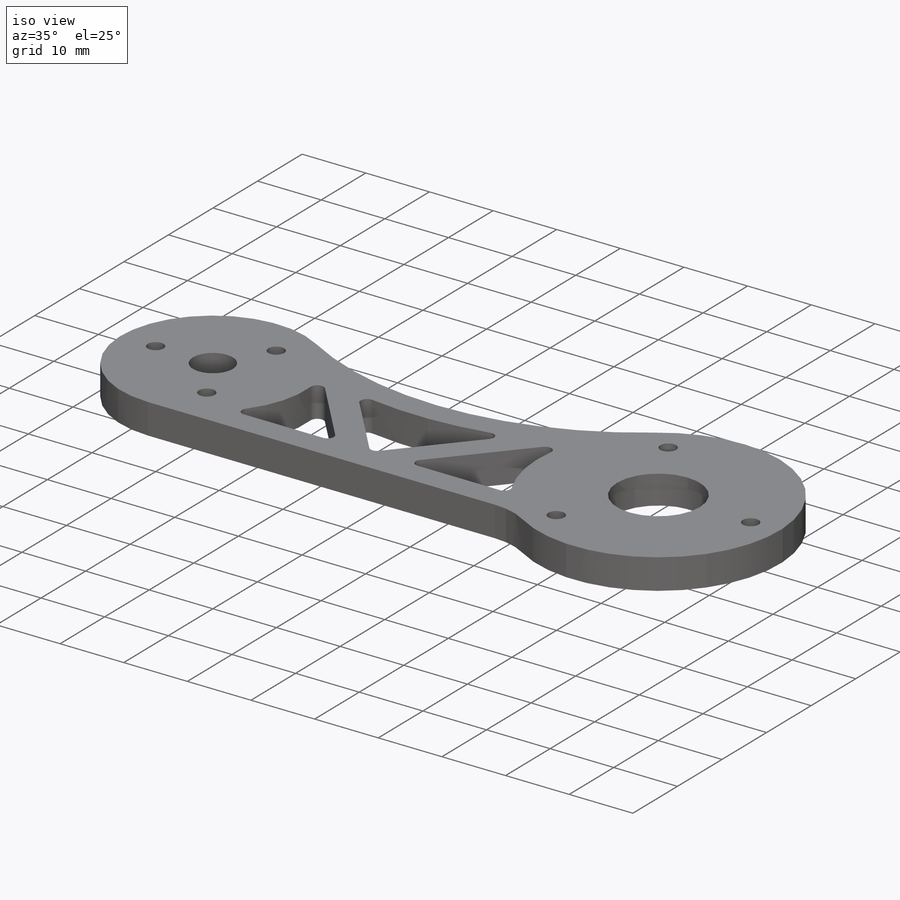
[diagram: iso view]
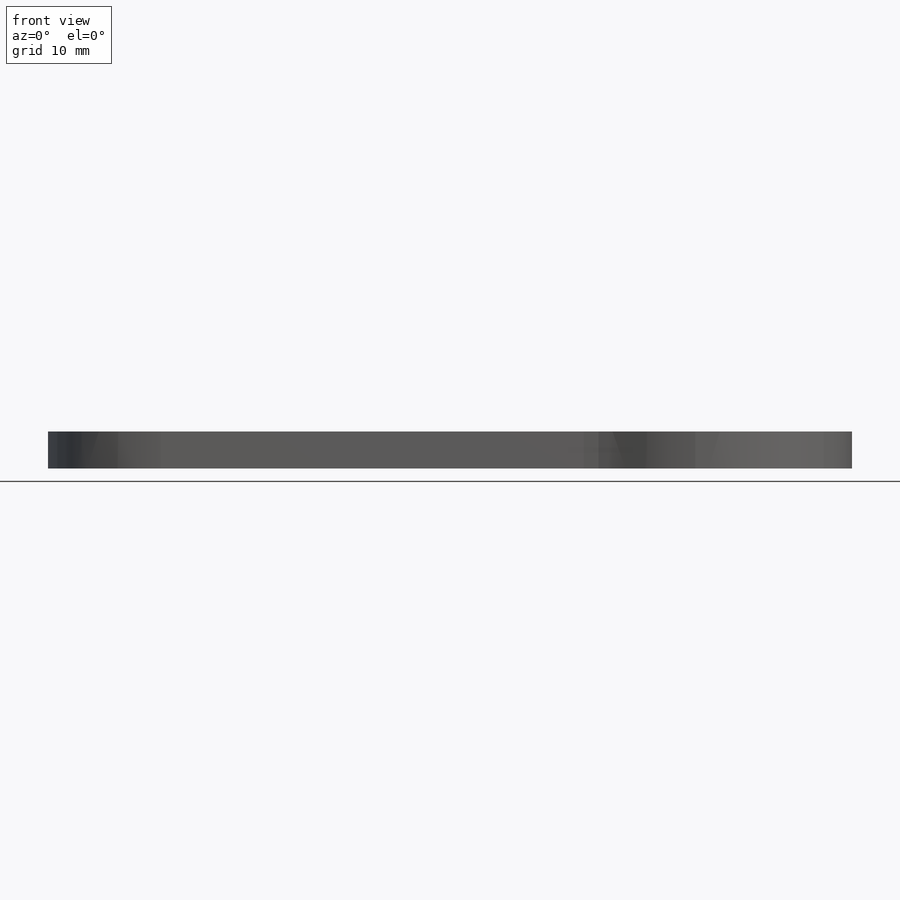
[diagram: front view]
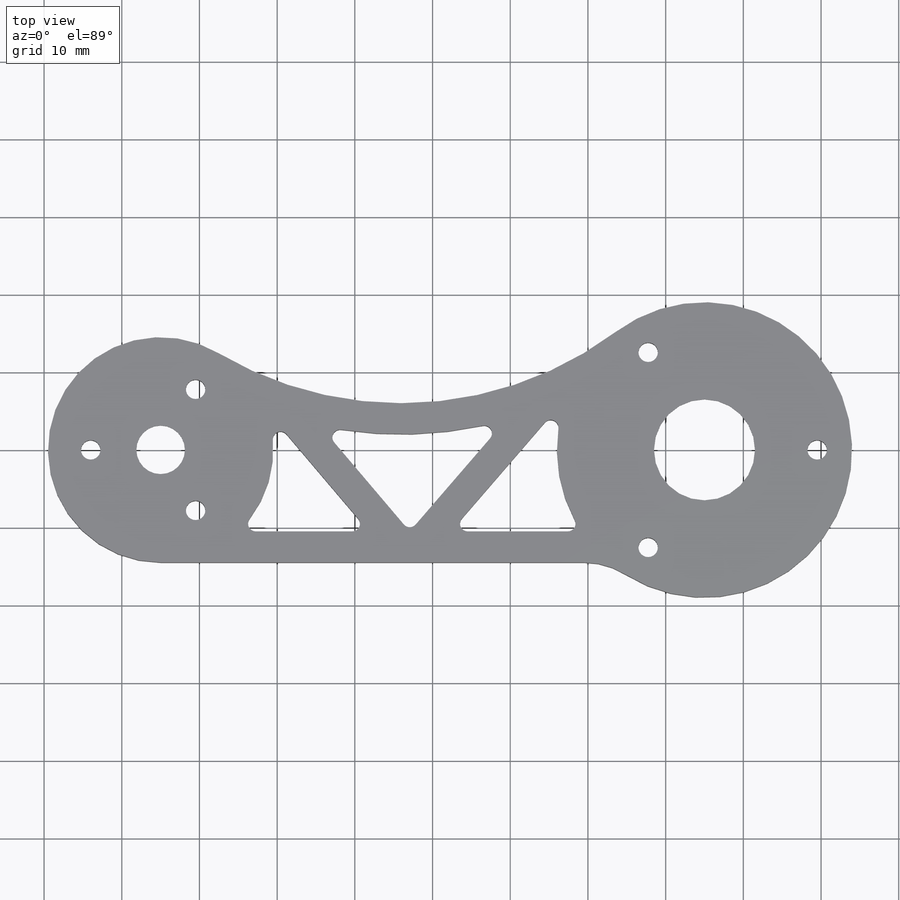
[diagram: top view]
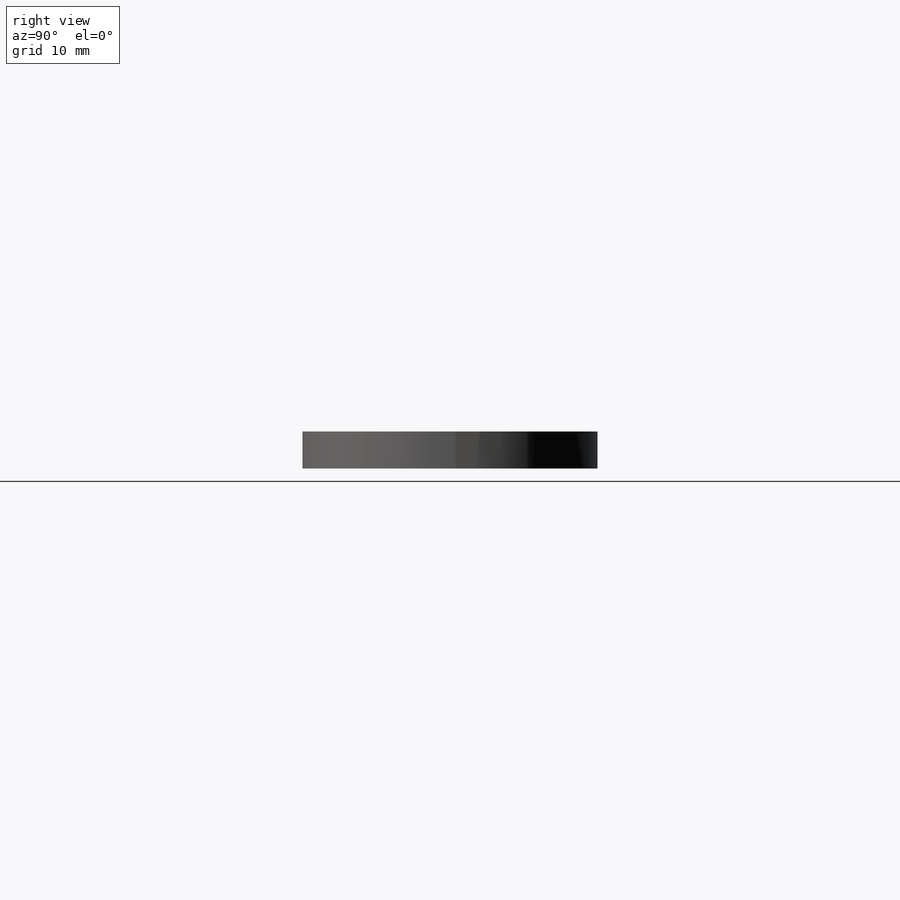
[diagram: right view]
SOLIDWORKS PART (.sldprt)
format: sldprt  version: not decoded by parser v0  size: 1,003,008 bytes
history: native  units: mm
features: sketch x16, cut_extrude x10, thread x9, extrude x2, hole x2, material x1, fillet x1, mirror x1 (+16 scaffold rows collapsed)
feature tree (58):
  scaffold x16  (default folders/planes/origin — collapsed)
  material  "Stainless Steel (ferritic)"
  sketch  "Sketch1"  dims[D1=29.0mm D2=38.0mm D4=20.0mm D3=70.0mm]
  extrude  "Boss-Extrude1"  Depth=4.7625mm
  sketch  "Sketch2"  dims[D1=6.0mm D2=4.0mm]
  cut_extrude  "Cut-Extrude1"  [1 undecoded]
  sketch  "Sketch3"  dims[D2=4.0mm D3=4.0mm D4=1.0mm D1=4.0mm]
  cut_extrude  "Cut-Extrude2"  [1 undecoded]
  fillet  "Fillet1"  Radius=1mm
  mirror  "Mirror1"
  sketch  "Sketch4"  dims[D1=8.0mm]
  extrude  "Boss-Extrude3"  [1 undecoded]
  sketch  "Sketch5"  dims[D1=6.25mm]
  cut_extrude  "Cut-Extrude3"  [1 undecoded]
  sketch  "Sketch6"  dims[D1=7.0mm]
  cut_extrude  "Cut-Extrude4"  Depth=1.5mm
  sketch  "Sketch7"  dims[D1=13.0mm]
  cut_extrude  "Cut-Extrude5"  [1 undecoded]
  sketch  "Sketch8"  dims[D1=14.0mm]
  cut_extrude  "Cut-Extrude6"  Depth=1.5mm
  sketch  "Sketch9"  dims[D1=10.0mm]
  cut_extrude  "Cut-Extrude7"  [1 undecoded]
  sketch  "Sketch10"  dims[D1=2.5mm]
  cut_extrude  "Cut-Extrude8"  Depth=2mm
  sketch  "Sketch11"  dims[D1=7.0mm]
  cut_extrude  "Cut-Extrude9"  Depth=1.5mm
  sketch  "Sketch12"  dims[D1=0.5mm]
  cut_extrude  "Cut-Extrude10"  [1 undecoded]
  hole  "M3x0.5 Tapped Hole1"  Diameter=2.5mm Depth=4.7625mm
  sketch  "Sketch14"  dims[c1.D1=18.0mm c1.D2=29.0mm c1.D3=~14.491455mm c2.D3=120.0deg c2.D4=~12.148622mm c3.D4=120.0deg c3.D5=9.0mm c4.D5=120.0deg c4.D6=9.0mm c5.D6=120.0deg]
  sketch  "Sketch13"  dims[hole-wizard template sketch: 60 standard entries collapsed; hole parameters kept: c18.Thru Tap Drill Depth=4.7625mm]
  thread  "Hole Thread1"  Diameter=3mm  [1 undecoded]
  thread  "Hole Thread2"  Diameter=3mm  [1 undecoded]
  thread  "Hole Thread3"  Diameter=3mm  [1 undecoded]
  thread  "Hole Thread4"  Diameter=3mm  [1 undecoded]
  thread  "Hole Thread5"  Diameter=3mm  [1 undecoded]
  thread  "Hole Thread6"  Diameter=3mm  [1 undecoded]
  hole  "M3x0.5 Tapped Hole2"  Diameter=2.5mm Depth=4.7625mm
  sketch  "Sketch16"  dims[c1.D1=18.0mm c1.D2=~8.853528mm c2.D2=120.0deg c2.D3=9.0mm c3.D3=120.0deg]
  sketch  "Sketch15"  dims[hole-wizard template sketch: 60 standard entries collapsed; hole parameters kept: c18.Thru Tap Drill Depth=4.7625mm]
  thread  "Hole Thread7"  Diameter=3mm  [1 undecoded]
  thread  "Hole Thread8"  Diameter=3mm  [1 undecoded]
  thread  "Hole Thread9"  Diameter=3mm  [1 undecoded]
decode coverage: 33 of 41 modeling features carry decoded parameters
note: ~ marks probable driven/reference dimensions
note: 16 parameter values undecoded
summary: no parameter record found for 7 features
note: suppression state not decoded; provenance and decode notes live in map.json
